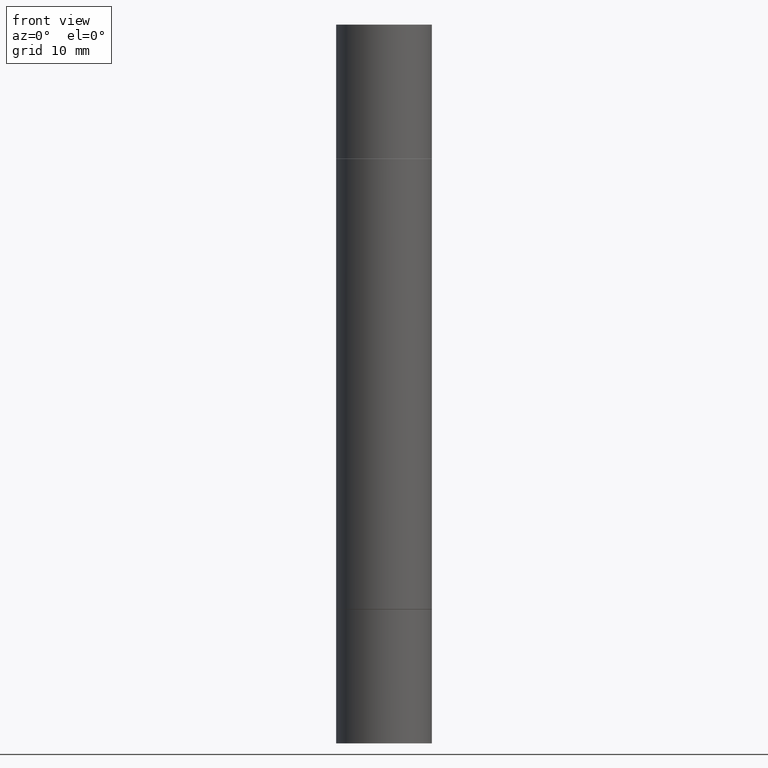
[diagram: clean part render]
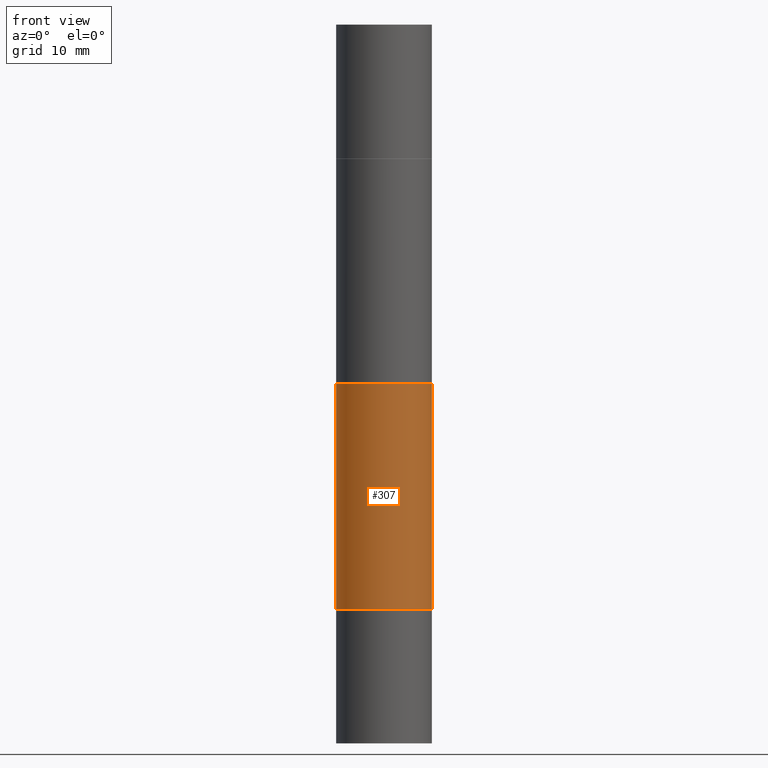
[diagram: same view with one face highlighted and labeled with its STEP entity id]
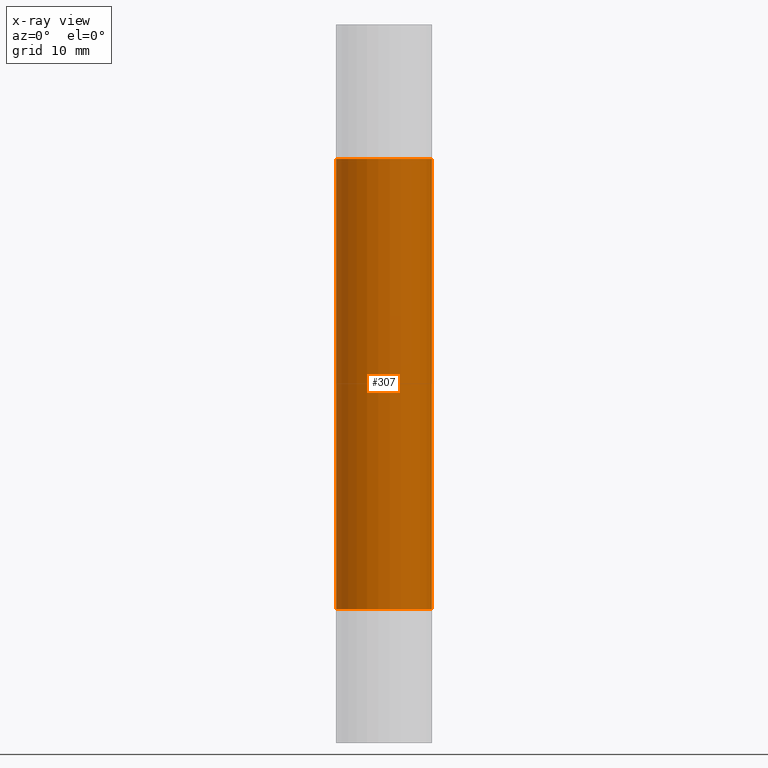
[diagram: x-ray of the same camera — body ghosted, the highlighted face saturated]
A machine part, front view. The second image highlights one B-rep face of the part: STEP entity #307.
The next image is the same camera in x-ray: the body ghosted, the highlighted face saturated — about 0% of this face is hidden behind the body in this view.
In plain terms, the highlighted cylindrical surface (partial cylindrical patch) has radius 5 mm, axis along (-0, -0, -1).
Its self-contained STEP definition (entity closure, byte-faithful):
#31 = AXIS2_PLACEMENT_3D ( 'NONE', #126, #453, #401 ) ;
#56 = CARTESIAN_POINT ( 'NONE',  ( -0.1968500000000000250, -3.804334017806689102E-15, -2.400599999999999401 ) ) ;
#84 = CIRCLE ( 'NONE', #444, 0.1968500000000000250 ) ;
#99 = CYLINDRICAL_SURFACE ( 'NONE', #287, 0.1968499999999998307 ) ;
#102 = VERTEX_POINT ( 'NONE', #668 ) ;
#107 = ORIENTED_EDGE ( 'NONE', *, *, #363, .T. ) ;
#111 = EDGE_CURVE ( 'NONE', #270, #390, #386, .T. ) ;
#126 = CARTESIAN_POINT ( 'NONE',  ( 5.870592416128037625E-29, -1.926693730311889446E-15, -0.5521999999999996911 ) ) ;
#148 = VECTOR ( 'NONE', #659, 39.37007874015748143 ) ;
#149 = DIRECTION ( 'NONE',  ( -2.445468806185136597E-29, -3.492890411551752677E-15, -1.000000000000000000 ) ) ;
#152 = CARTESIAN_POINT ( 'NONE',  ( -0.1968499999999998307, -8.961237421421701017E-15, -2.952799999999998981 ) ) ;
#202 = CARTESIAN_POINT ( 'NONE',  ( 5.870592416128037625E-29, -8.381650102026854256E-15, -2.400599999999999401 ) ) ;
#210 = CARTESIAN_POINT ( 'NONE',  ( -0.1968500000000000250, -5.762046994505618475E-16, -0.5521999999999996911 ) ) ;
#236 = LINE ( 'NONE', #302, #148 ) ;
#263 = ORIENTED_EDGE ( 'NONE', *, *, #603, .F. ) ;
#270 = VERTEX_POINT ( 'NONE', #210 ) ;
#287 = AXIS2_PLACEMENT_3D ( 'NONE', #469, #149, #672 ) ;
#290 = EDGE_CURVE ( 'NONE', #385, #102, #84, .T. ) ;
#296 = ORIENTED_EDGE ( 'NONE', *, *, #111, .F. ) ;
#302 = CARTESIAN_POINT ( 'NONE',  ( 0.1968499999999998307, -1.168632265538556411E-14, -2.952799999999998981 ) ) ;
#307 = ADVANCED_FACE ( 'NONE', ( #418 ), #99, .T. ) ;
#310 = DIRECTION ( 'NONE',  ( -2.445468806185136597E-29, 3.491481338843145583E-15, 1.000000000000000000 ) ) ;
#363 = EDGE_CURVE ( 'NONE', #270, #385, #420, .T. ) ;
#385 = VERTEX_POINT ( 'NONE', #56 ) ;
#386 = CIRCLE ( 'NONE', #31, 0.1968500000000000250 ) ;
#390 = VERTEX_POINT ( 'NONE', #532 ) ;
#401 = DIRECTION ( 'NONE',  ( 1.000000000000000000, -6.982962677686267499E-15, 0.000000000000000000 ) ) ;
#418 = FACE_OUTER_BOUND ( 'NONE', #482, .T. ) ;
#420 = LINE ( 'NONE', #152, #669 ) ;
#444 = AXIS2_PLACEMENT_3D ( 'NONE', #202, #310, #466 ) ;
#453 = DIRECTION ( 'NONE',  ( 2.445468806185136597E-29, 3.492890411551752677E-15, 1.000000000000000000 ) ) ;
#466 = DIRECTION ( 'NONE',  ( 1.000000000000000000, -6.982962677686262766E-15, 0.000000000000000000 ) ) ;
#469 = CARTESIAN_POINT ( 'NONE',  ( 0.000000000000000000, -1.031172645228302408E-14, -2.952799999999998981 ) ) ;
#482 = EDGE_LOOP ( 'NONE', ( #296, #107, #588, #263 ) ) ;
#532 = CARTESIAN_POINT ( 'NONE',  ( 0.1968500000000000250, -3.301289933414429871E-15, -0.5521999999999996911 ) ) ;
#588 = ORIENTED_EDGE ( 'NONE', *, *, #290, .T. ) ;
#603 = EDGE_CURVE ( 'NONE', #390, #102, #236, .T. ) ;
#622 = DIRECTION ( 'NONE',  ( -2.445468806185136877E-29, -3.492890411551753071E-15, -1.000000000000000000 ) ) ;
#659 = DIRECTION ( 'NONE',  ( -2.445468806185136877E-29, -3.492890411551753071E-15, -1.000000000000000000 ) ) ;
#668 = CARTESIAN_POINT ( 'NONE',  ( 0.1968500000000000250, -9.756246305129394287E-15, -2.400599999999999401 ) ) ;
#669 = VECTOR ( 'NONE', #622, 39.37007874015748143 ) ;
#672 = DIRECTION ( 'NONE',  ( 1.000000000000000000, -6.982962677686264344E-15, 0.000000000000000000 ) ) ;